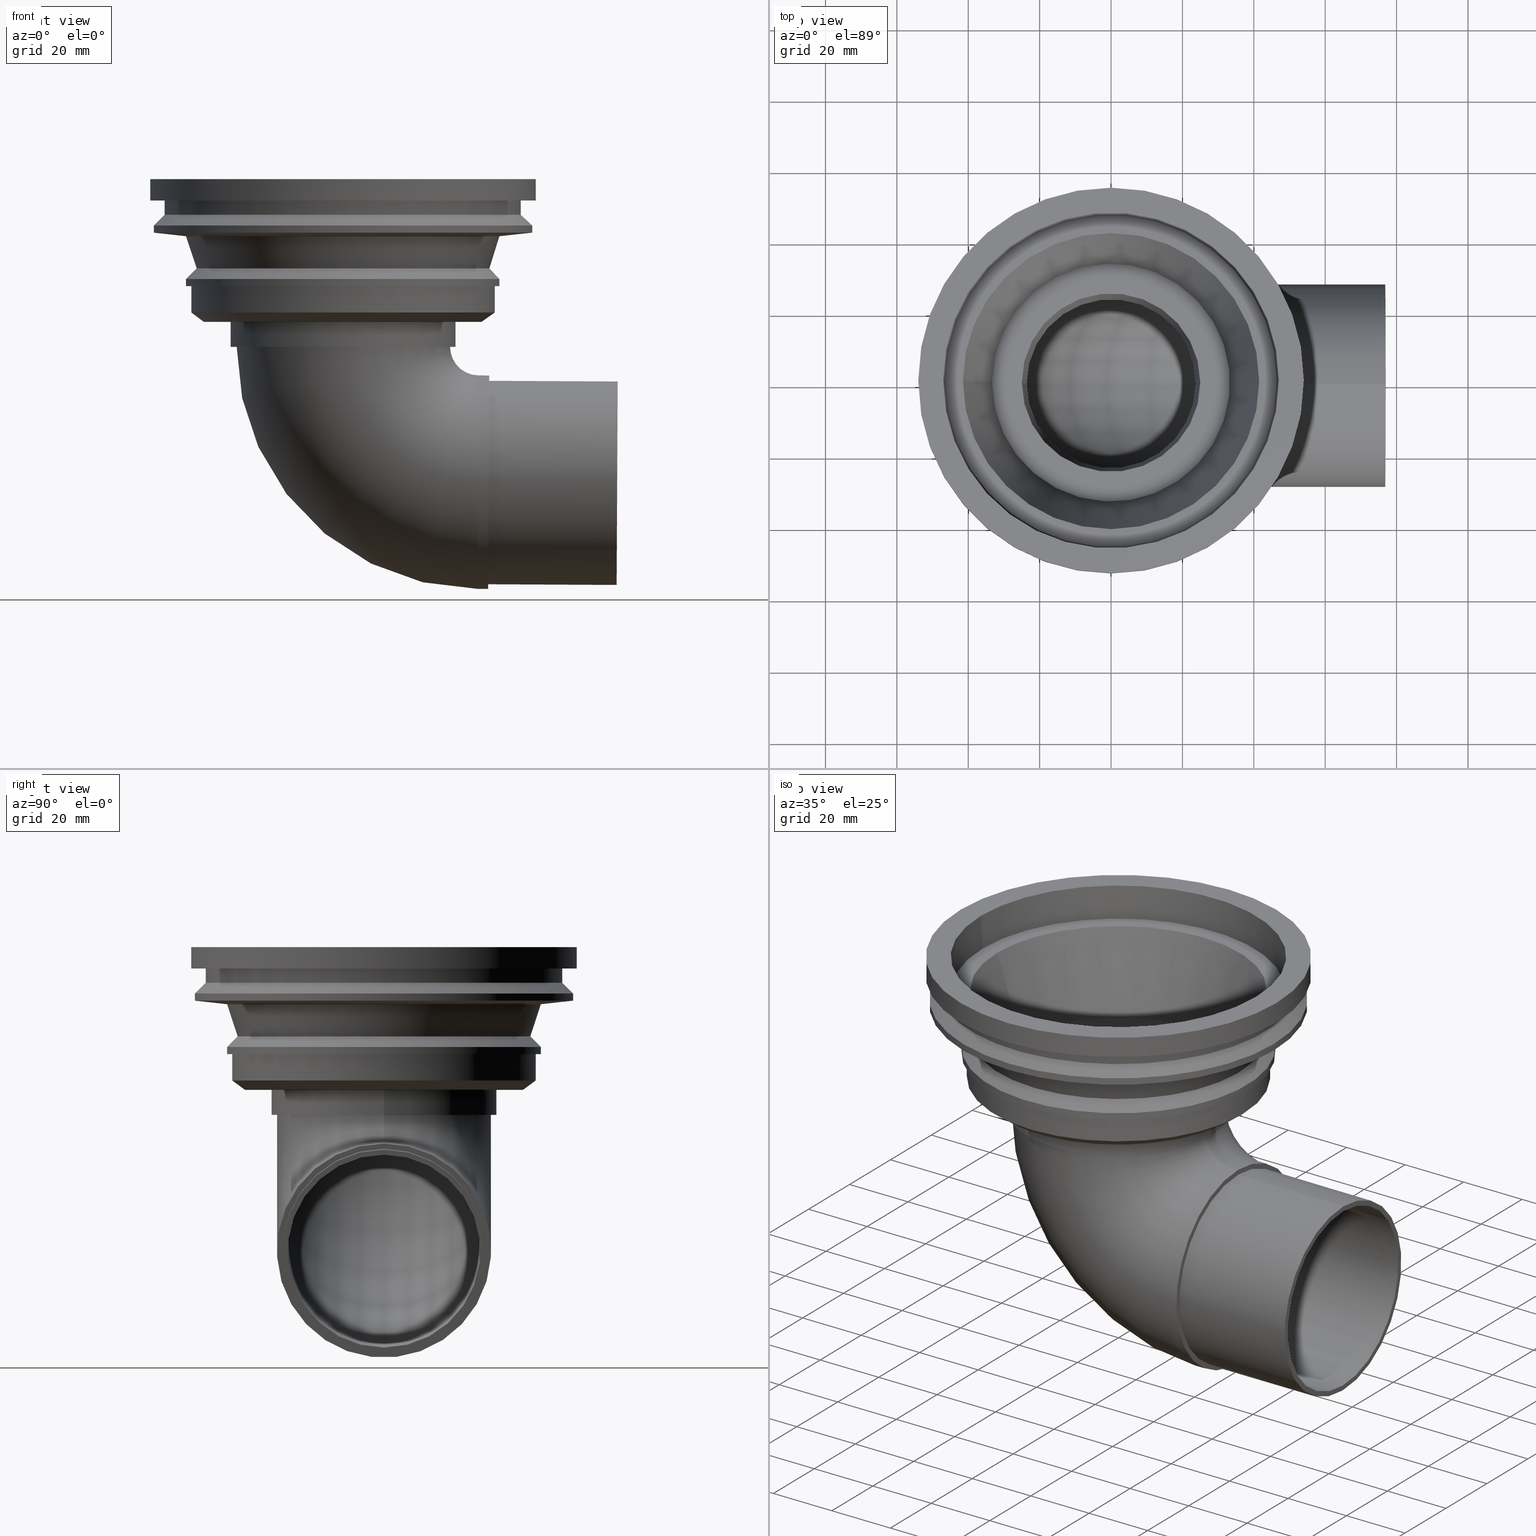
[diagram: canonical four-view strip — front | top / right | iso, engineering-drawing reading convention]
A machine part, canonical four-view strip (front | top / right | iso — engineering-drawing reading convention). The complete STEP part file that produces these views, byte-faithful:
ISO-10303-21;
HEADER;
/* Generated by software containing ST-Developer
 * from STEP Tools, Inc. (www.steptools.com) 
 */
/* OPTION: using custom renumber hook */

FILE_DESCRIPTION(
/* description */ ('STEP AP214'),
/* implementation_level */ '2;1');

FILE_NAME(
/* name */ '482068001(1)',
/* time_stamp */ '2022-12-23T08:19:36+01:00',
/* author */ ('License CC BY-ND 4.0'),
/* organization */ ('CADENAS'),
/* preprocessor_version */ 'ST-DEVELOPER v18.102',
/* originating_system */ 'PARTsolutions',
/* authorisation */ '  ');

FILE_SCHEMA (('AUTOMOTIVE_DESIGN {1 0 10303 214 3 1 1}'));
ENDSEC;

DATA;
#10=PROPERTY_DEFINITION_REPRESENTATION(#14,#12);
#11=PROPERTY_DEFINITION_REPRESENTATION(#15,#13);
#12=REPRESENTATION('',(#16),#737);
#13=REPRESENTATION('',(#17),#737);
#14=PROPERTY_DEFINITION('pmi validation property','',#742);
#15=PROPERTY_DEFINITION('pmi validation property','',#742);
#16=VALUE_REPRESENTATION_ITEM('number of annotations',COUNT_MEASURE(0.));
#17=VALUE_REPRESENTATION_ITEM('number of views',COUNT_MEASURE(0.));
#18=SHAPE_REPRESENTATION_RELATIONSHIP('','',#416,#19);
#19=ADVANCED_BREP_SHAPE_REPRESENTATION('',(#414),#737);
#20=TOROIDAL_SURFACE('',#473,38.,28.5);
#21=TOROIDAL_SURFACE('',#475,38.,30.);
#22=CONICAL_SURFACE('',#428,47.,0.0499583957219428);
#23=CONICAL_SURFACE('',#432,41.5,0.321750554396643);
#24=CONICAL_SURFACE('',#436,25.,0.0659867835152371);
#25=CONICAL_SURFACE('',#440,26.642,0.0659707949251099);
#26=CONICAL_SURFACE('',#444,39.,0.927295218001611);
#27=CONICAL_SURFACE('',#452,44.,0.785398163397446);
#28=CONICAL_SURFACE('',#454,41.,0.321750554396643);
#29=CONICAL_SURFACE('',#456,44.,1.460139105621);
#30=CONICAL_SURFACE('',#460,53.,0.785398163397447);
#31=CYLINDRICAL_SURFACE('',#424,54.);
#32=CYLINDRICAL_SURFACE('',#446,42.5);
#33=CYLINDRICAL_SURFACE('',#450,44.);
#34=CYLINDRICAL_SURFACE('',#458,53.);
#35=CYLINDRICAL_SURFACE('',#462,50.);
#36=CYLINDRICAL_SURFACE('',#463,28.5);
#37=CYLINDRICAL_SURFACE('',#468,30.);
#38=CYLINDRICAL_SURFACE('',#469,31.5);
#39=CYLINDRICAL_SURFACE('',#479,27.);
#40=CYLINDRICAL_SURFACE('',#481,30.);
#41=CYLINDRICAL_SURFACE('',#485,28.5);
#42=ORIENTED_EDGE('',*,*,#112,.F.);
#43=ORIENTED_EDGE('',*,*,#113,.F.);
#44=ORIENTED_EDGE('',*,*,#114,.T.);
#45=ORIENTED_EDGE('',*,*,#115,.F.);
#46=ORIENTED_EDGE('',*,*,#116,.T.);
#47=ORIENTED_EDGE('',*,*,#114,.F.);
#48=ORIENTED_EDGE('',*,*,#117,.T.);
#49=ORIENTED_EDGE('',*,*,#116,.F.);
#50=ORIENTED_EDGE('',*,*,#118,.T.);
#51=ORIENTED_EDGE('',*,*,#117,.F.);
#52=ORIENTED_EDGE('',*,*,#119,.T.);
#53=ORIENTED_EDGE('',*,*,#118,.F.);
#54=ORIENTED_EDGE('',*,*,#120,.T.);
#55=ORIENTED_EDGE('',*,*,#119,.F.);
#56=ORIENTED_EDGE('',*,*,#121,.T.);
#57=ORIENTED_EDGE('',*,*,#120,.F.);
#58=ORIENTED_EDGE('',*,*,#122,.T.);
#59=ORIENTED_EDGE('',*,*,#121,.F.);
#60=ORIENTED_EDGE('',*,*,#123,.T.);
#61=ORIENTED_EDGE('',*,*,#122,.F.);
#62=ORIENTED_EDGE('',*,*,#113,.T.);
#63=ORIENTED_EDGE('',*,*,#123,.F.);
#64=ORIENTED_EDGE('',*,*,#124,.T.);
#65=ORIENTED_EDGE('',*,*,#125,.F.);
#66=ORIENTED_EDGE('',*,*,#126,.T.);
#67=ORIENTED_EDGE('',*,*,#124,.F.);
#68=ORIENTED_EDGE('',*,*,#127,.T.);
#69=ORIENTED_EDGE('',*,*,#126,.F.);
#70=ORIENTED_EDGE('',*,*,#128,.T.);
#71=ORIENTED_EDGE('',*,*,#127,.F.);
#72=ORIENTED_EDGE('',*,*,#129,.T.);
#73=ORIENTED_EDGE('',*,*,#128,.F.);
#74=ORIENTED_EDGE('',*,*,#130,.T.);
#75=ORIENTED_EDGE('',*,*,#129,.F.);
#76=ORIENTED_EDGE('',*,*,#131,.T.);
#77=ORIENTED_EDGE('',*,*,#130,.F.);
#78=ORIENTED_EDGE('',*,*,#132,.T.);
#79=ORIENTED_EDGE('',*,*,#131,.F.);
#80=ORIENTED_EDGE('',*,*,#133,.T.);
#81=ORIENTED_EDGE('',*,*,#132,.F.);
#82=ORIENTED_EDGE('',*,*,#134,.T.);
#83=ORIENTED_EDGE('',*,*,#133,.F.);
#84=ORIENTED_EDGE('',*,*,#115,.T.);
#85=ORIENTED_EDGE('',*,*,#134,.F.);
#86=ORIENTED_EDGE('',*,*,#135,.T.);
#87=ORIENTED_EDGE('',*,*,#136,.F.);
#88=ORIENTED_EDGE('',*,*,#137,.T.);
#89=ORIENTED_EDGE('',*,*,#135,.F.);
#90=ORIENTED_EDGE('',*,*,#112,.T.);
#91=ORIENTED_EDGE('',*,*,#137,.F.);
#92=ORIENTED_EDGE('',*,*,#138,.T.);
#93=ORIENTED_EDGE('',*,*,#125,.T.);
#94=ORIENTED_EDGE('',*,*,#139,.T.);
#95=ORIENTED_EDGE('',*,*,#138,.F.);
#96=ORIENTED_EDGE('',*,*,#140,.F.);
#97=ORIENTED_EDGE('',*,*,#136,.T.);
#98=ORIENTED_EDGE('',*,*,#141,.T.);
#99=ORIENTED_EDGE('',*,*,#139,.F.);
#100=ORIENTED_EDGE('',*,*,#140,.T.);
#101=ORIENTED_EDGE('',*,*,#142,.F.);
#102=ORIENTED_EDGE('',*,*,#142,.T.);
#103=ORIENTED_EDGE('',*,*,#143,.F.);
#104=ORIENTED_EDGE('',*,*,#144,.T.);
#105=ORIENTED_EDGE('',*,*,#141,.F.);
#106=ORIENTED_EDGE('',*,*,#145,.T.);
#107=ORIENTED_EDGE('',*,*,#144,.F.);
#108=ORIENTED_EDGE('',*,*,#146,.T.);
#109=ORIENTED_EDGE('',*,*,#145,.F.);
#110=ORIENTED_EDGE('',*,*,#143,.T.);
#111=ORIENTED_EDGE('',*,*,#146,.F.);
#112=EDGE_CURVE('',#147,#147,#182,.F.);
#113=EDGE_CURVE('',#148,#148,#183,.T.);
#114=EDGE_CURVE('',#149,#149,#184,.T.);
#115=EDGE_CURVE('',#150,#150,#185,.T.);
#116=EDGE_CURVE('',#151,#151,#186,.T.);
#117=EDGE_CURVE('',#152,#152,#187,.T.);
#118=EDGE_CURVE('',#153,#153,#188,.T.);
#119=EDGE_CURVE('',#154,#154,#189,.T.);
#120=EDGE_CURVE('',#155,#155,#190,.T.);
#121=EDGE_CURVE('',#156,#156,#191,.T.);
#122=EDGE_CURVE('',#157,#157,#192,.T.);
#123=EDGE_CURVE('',#158,#158,#193,.T.);
#124=EDGE_CURVE('',#159,#159,#194,.T.);
#125=EDGE_CURVE('',#160,#160,#195,.T.);
#126=EDGE_CURVE('',#161,#161,#196,.T.);
#127=EDGE_CURVE('',#162,#162,#197,.T.);
#128=EDGE_CURVE('',#163,#163,#198,.T.);
#129=EDGE_CURVE('',#164,#164,#199,.T.);
#130=EDGE_CURVE('',#165,#165,#200,.T.);
#131=EDGE_CURVE('',#166,#166,#201,.T.);
#132=EDGE_CURVE('',#167,#167,#202,.T.);
#133=EDGE_CURVE('',#168,#168,#203,.T.);
#134=EDGE_CURVE('',#169,#169,#204,.T.);
#135=EDGE_CURVE('',#170,#170,#205,.T.);
#136=EDGE_CURVE('',#171,#171,#206,.T.);
#137=EDGE_CURVE('',#172,#172,#207,.T.);
#138=EDGE_CURVE('',#173,#173,#208,.T.);
#139=EDGE_CURVE('',#174,#174,#209,.T.);
#140=EDGE_CURVE('',#175,#175,#210,.T.);
#141=EDGE_CURVE('',#176,#176,#211,.T.);
#142=EDGE_CURVE('',#177,#177,#212,.T.);
#143=EDGE_CURVE('',#178,#178,#213,.T.);
#144=EDGE_CURVE('',#179,#179,#214,.T.);
#145=EDGE_CURVE('',#180,#180,#215,.T.);
#146=EDGE_CURVE('',#181,#181,#216,.T.);
#147=VERTEX_POINT('',#633);
#148=VERTEX_POINT('',#635);
#149=VERTEX_POINT('',#638);
#150=VERTEX_POINT('',#640);
#151=VERTEX_POINT('',#643);
#152=VERTEX_POINT('',#646);
#153=VERTEX_POINT('',#649);
#154=VERTEX_POINT('',#652);
#155=VERTEX_POINT('',#655);
#156=VERTEX_POINT('',#658);
#157=VERTEX_POINT('',#661);
#158=VERTEX_POINT('',#664);
#159=VERTEX_POINT('',#668);
#160=VERTEX_POINT('',#670);
#161=VERTEX_POINT('',#673);
#162=VERTEX_POINT('',#676);
#163=VERTEX_POINT('',#679);
#164=VERTEX_POINT('',#682);
#165=VERTEX_POINT('',#685);
#166=VERTEX_POINT('',#688);
#167=VERTEX_POINT('',#691);
#168=VERTEX_POINT('',#694);
#169=VERTEX_POINT('',#697);
#170=VERTEX_POINT('',#701);
#171=VERTEX_POINT('',#703);
#172=VERTEX_POINT('',#706);
#173=VERTEX_POINT('',#710);
#174=VERTEX_POINT('',#713);
#175=VERTEX_POINT('',#716);
#176=VERTEX_POINT('',#719);
#177=VERTEX_POINT('',#722);
#178=VERTEX_POINT('',#725);
#179=VERTEX_POINT('',#728);
#180=VERTEX_POINT('',#731);
#181=VERTEX_POINT('',#734);
#182=CIRCLE('',#419,30.);
#183=CIRCLE('',#420,27.633);
#184=CIRCLE('',#422,54.);
#185=CIRCLE('',#423,50.);
#186=CIRCLE('',#425,54.);
#187=CIRCLE('',#427,47.);
#188=CIRCLE('',#429,46.5);
#189=CIRCLE('',#431,41.5);
#190=CIRCLE('',#433,33.35);
#191=CIRCLE('',#435,25.);
#192=CIRCLE('',#437,23.642);
#193=CIRCLE('',#439,26.642);
#194=CIRCLE('',#442,39.);
#195=CIRCLE('',#443,31.5);
#196=CIRCLE('',#445,42.5);
#197=CIRCLE('',#447,42.5);
#198=CIRCLE('',#449,44.);
#199=CIRCLE('',#451,44.);
#200=CIRCLE('',#453,41.);
#201=CIRCLE('',#455,44.);
#202=CIRCLE('',#457,53.);
#203=CIRCLE('',#459,53.);
#204=CIRCLE('',#461,50.);
#205=CIRCLE('',#464,28.5);
#206=CIRCLE('',#465,28.5);
#207=CIRCLE('',#467,30.);
#208=CIRCLE('',#470,31.5);
#209=CIRCLE('',#472,30.);
#210=CIRCLE('',#474,28.5);
#211=CIRCLE('',#476,30.);
#212=CIRCLE('',#478,27.);
#213=CIRCLE('',#480,27.);
#214=CIRCLE('',#482,30.);
#215=CIRCLE('',#484,28.5);
#216=CIRCLE('',#486,28.5);
#217=EDGE_LOOP('',(#42));
#218=EDGE_LOOP('',(#43));
#219=EDGE_LOOP('',(#44));
#220=EDGE_LOOP('',(#45));
#221=EDGE_LOOP('',(#46));
#222=EDGE_LOOP('',(#47));
#223=EDGE_LOOP('',(#48));
#224=EDGE_LOOP('',(#49));
#225=EDGE_LOOP('',(#50));
#226=EDGE_LOOP('',(#51));
#227=EDGE_LOOP('',(#52));
#228=EDGE_LOOP('',(#53));
#229=EDGE_LOOP('',(#54));
#230=EDGE_LOOP('',(#55));
#231=EDGE_LOOP('',(#56));
#232=EDGE_LOOP('',(#57));
#233=EDGE_LOOP('',(#58));
#234=EDGE_LOOP('',(#59));
#235=EDGE_LOOP('',(#60));
#236=EDGE_LOOP('',(#61));
#237=EDGE_LOOP('',(#62));
#238=EDGE_LOOP('',(#63));
#239=EDGE_LOOP('',(#64));
#240=EDGE_LOOP('',(#65));
#241=EDGE_LOOP('',(#66));
#242=EDGE_LOOP('',(#67));
#243=EDGE_LOOP('',(#68));
#244=EDGE_LOOP('',(#69));
#245=EDGE_LOOP('',(#70));
#246=EDGE_LOOP('',(#71));
#247=EDGE_LOOP('',(#72));
#248=EDGE_LOOP('',(#73));
#249=EDGE_LOOP('',(#74));
#250=EDGE_LOOP('',(#75));
#251=EDGE_LOOP('',(#76));
#252=EDGE_LOOP('',(#77));
#253=EDGE_LOOP('',(#78));
#254=EDGE_LOOP('',(#79));
#255=EDGE_LOOP('',(#80));
#256=EDGE_LOOP('',(#81));
#257=EDGE_LOOP('',(#82));
#258=EDGE_LOOP('',(#83));
#259=EDGE_LOOP('',(#84));
#260=EDGE_LOOP('',(#85));
#261=EDGE_LOOP('',(#86));
#262=EDGE_LOOP('',(#87));
#263=EDGE_LOOP('',(#88));
#264=EDGE_LOOP('',(#89));
#265=EDGE_LOOP('',(#90));
#266=EDGE_LOOP('',(#91));
#267=EDGE_LOOP('',(#92));
#268=EDGE_LOOP('',(#93));
#269=EDGE_LOOP('',(#94));
#270=EDGE_LOOP('',(#95));
#271=EDGE_LOOP('',(#96));
#272=EDGE_LOOP('',(#97));
#273=EDGE_LOOP('',(#98));
#274=EDGE_LOOP('',(#99));
#275=EDGE_LOOP('',(#100));
#276=EDGE_LOOP('',(#101));
#277=EDGE_LOOP('',(#102));
#278=EDGE_LOOP('',(#103));
#279=EDGE_LOOP('',(#104));
#280=EDGE_LOOP('',(#105));
#281=EDGE_LOOP('',(#106));
#282=EDGE_LOOP('',(#107));
#283=EDGE_LOOP('',(#108));
#284=EDGE_LOOP('',(#109));
#285=EDGE_LOOP('',(#110));
#286=EDGE_LOOP('',(#111));
#287=FACE_BOUND('',#217,.T.);
#288=FACE_BOUND('',#218,.T.);
#289=FACE_BOUND('',#219,.T.);
#290=FACE_BOUND('',#220,.T.);
#291=FACE_BOUND('',#221,.T.);
#292=FACE_BOUND('',#222,.T.);
#293=FACE_BOUND('',#223,.T.);
#294=FACE_BOUND('',#224,.T.);
#295=FACE_BOUND('',#225,.T.);
#296=FACE_BOUND('',#226,.T.);
#297=FACE_BOUND('',#227,.T.);
#298=FACE_BOUND('',#228,.T.);
#299=FACE_BOUND('',#229,.T.);
#300=FACE_BOUND('',#230,.T.);
#301=FACE_BOUND('',#231,.T.);
#302=FACE_BOUND('',#232,.T.);
#303=FACE_BOUND('',#233,.T.);
#304=FACE_BOUND('',#234,.T.);
#305=FACE_BOUND('',#235,.T.);
#306=FACE_BOUND('',#236,.T.);
#307=FACE_BOUND('',#237,.T.);
#308=FACE_BOUND('',#238,.T.);
#309=FACE_BOUND('',#239,.T.);
#310=FACE_BOUND('',#240,.T.);
#311=FACE_BOUND('',#241,.T.);
#312=FACE_BOUND('',#242,.T.);
#313=FACE_BOUND('',#243,.T.);
#314=FACE_BOUND('',#244,.T.);
#315=FACE_BOUND('',#245,.T.);
#316=FACE_BOUND('',#246,.T.);
#317=FACE_BOUND('',#247,.T.);
#318=FACE_BOUND('',#248,.T.);
#319=FACE_BOUND('',#249,.T.);
#320=FACE_BOUND('',#250,.T.);
#321=FACE_BOUND('',#251,.T.);
#322=FACE_BOUND('',#252,.T.);
#323=FACE_BOUND('',#253,.T.);
#324=FACE_BOUND('',#254,.T.);
#325=FACE_BOUND('',#255,.T.);
#326=FACE_BOUND('',#256,.T.);
#327=FACE_BOUND('',#257,.T.);
#328=FACE_BOUND('',#258,.T.);
#329=FACE_BOUND('',#259,.T.);
#330=FACE_BOUND('',#260,.T.);
#331=FACE_BOUND('',#261,.T.);
#332=FACE_BOUND('',#262,.T.);
#333=FACE_BOUND('',#263,.T.);
#334=FACE_BOUND('',#264,.T.);
#335=FACE_BOUND('',#265,.T.);
#336=FACE_BOUND('',#266,.T.);
#337=FACE_BOUND('',#267,.T.);
#338=FACE_BOUND('',#268,.T.);
#339=FACE_BOUND('',#269,.T.);
#340=FACE_BOUND('',#270,.T.);
#341=FACE_BOUND('',#271,.T.);
#342=FACE_BOUND('',#272,.T.);
#343=FACE_BOUND('',#273,.T.);
#344=FACE_BOUND('',#274,.T.);
#345=FACE_BOUND('',#275,.T.);
#346=FACE_BOUND('',#276,.T.);
#347=FACE_BOUND('',#277,.T.);
#348=FACE_BOUND('',#278,.T.);
#349=FACE_BOUND('',#279,.T.);
#350=FACE_BOUND('',#280,.T.);
#351=FACE_BOUND('',#281,.T.);
#352=FACE_BOUND('',#282,.T.);
#353=FACE_BOUND('',#283,.T.);
#354=FACE_BOUND('',#284,.T.);
#355=FACE_BOUND('',#285,.T.);
#356=FACE_BOUND('',#286,.T.);
#357=PLANE('',#418);
#358=PLANE('',#421);
#359=PLANE('',#426);
#360=PLANE('',#430);
#361=PLANE('',#434);
#362=PLANE('',#438);
#363=PLANE('',#441);
#364=PLANE('',#448);
#365=PLANE('',#466);
#366=PLANE('',#471);
#367=PLANE('',#477);
#368=PLANE('',#483);
#369=PLANE('',#487);
#370=ADVANCED_FACE('',(#287,#288),#357,.T.);
#371=ADVANCED_FACE('',(#289,#290),#358,.T.);
#372=ADVANCED_FACE('',(#291,#292),#31,.T.);
#373=ADVANCED_FACE('',(#293,#294),#359,.T.);
#374=ADVANCED_FACE('',(#295,#296),#22,.F.);
#375=ADVANCED_FACE('',(#297,#298),#360,.T.);
#376=ADVANCED_FACE('',(#299,#300),#23,.F.);
#377=ADVANCED_FACE('',(#301,#302),#361,.T.);
#378=ADVANCED_FACE('',(#303,#304),#24,.F.);
#379=ADVANCED_FACE('',(#305,#306),#362,.T.);
#380=ADVANCED_FACE('',(#307,#308),#25,.T.);
#381=ADVANCED_FACE('',(#309,#310),#363,.T.);
#382=ADVANCED_FACE('',(#311,#312),#26,.T.);
#383=ADVANCED_FACE('',(#313,#314),#32,.T.);
#384=ADVANCED_FACE('',(#315,#316),#364,.T.);
#385=ADVANCED_FACE('',(#317,#318),#33,.T.);
#386=ADVANCED_FACE('',(#319,#320),#27,.T.);
#387=ADVANCED_FACE('',(#321,#322),#28,.T.);
#388=ADVANCED_FACE('',(#323,#324),#29,.T.);
#389=ADVANCED_FACE('',(#325,#326),#34,.T.);
#390=ADVANCED_FACE('',(#327,#328),#30,.T.);
#391=ADVANCED_FACE('',(#329,#330),#35,.T.);
#392=ADVANCED_FACE('',(#331,#332),#36,.F.);
#393=ADVANCED_FACE('',(#333,#334),#365,.T.);
#394=ADVANCED_FACE('',(#335,#336),#37,.F.);
#395=ADVANCED_FACE('',(#337,#338),#38,.T.);
#396=ADVANCED_FACE('',(#339,#340),#366,.T.);
#397=ADVANCED_FACE('',(#341,#342),#20,.F.);
#398=ADVANCED_FACE('',(#343,#344),#21,.T.);
#399=ADVANCED_FACE('',(#345,#346),#367,.T.);
#400=ADVANCED_FACE('',(#347,#348),#39,.F.);
#401=ADVANCED_FACE('',(#349,#350),#40,.T.);
#402=ADVANCED_FACE('',(#351,#352),#368,.T.);
#403=ADVANCED_FACE('',(#353,#354),#41,.T.);
#404=ADVANCED_FACE('',(#355,#356),#369,.T.);
#405=CLOSED_SHELL('',(#370,#371,#372,#373,#374,#375,#376,#377,#378,#379,
#380,#381,#382,#383,#384,#385,#386,#387,#388,#389,#390,#391,#392,#393,#394,
#395,#396,#397,#398,#399,#400,#401,#402,#403,#404));
#406=STYLED_ITEM('',(#407),#414);
#407=PRESENTATION_STYLE_ASSIGNMENT((#408));
#408=SURFACE_STYLE_USAGE(.BOTH.,#409);
#409=SURFACE_SIDE_STYLE('',(#410));
#410=SURFACE_STYLE_FILL_AREA(#411);
#411=FILL_AREA_STYLE('',(#412));
#412=FILL_AREA_STYLE_COLOUR('',#413);
#413=COLOUR_RGB('',0.689999997615814,0.689999997615814,0.689999997615814);
#414=MANIFOLD_SOLID_BREP('482068001(1)',#405);
#415=SHAPE_DEFINITION_REPRESENTATION(#742,#416);
#416=SHAPE_REPRESENTATION('482068001(1)',(#417),#737);
#417=AXIS2_PLACEMENT_3D('',#630,#488,#489);
#418=AXIS2_PLACEMENT_3D('',#631,#490,#491);
#419=AXIS2_PLACEMENT_3D('',#632,#492,#493);
#420=AXIS2_PLACEMENT_3D('',#634,#494,#495);
#421=AXIS2_PLACEMENT_3D('',#636,#496,#497);
#422=AXIS2_PLACEMENT_3D('',#637,#498,#499);
#423=AXIS2_PLACEMENT_3D('',#639,#500,#501);
#424=AXIS2_PLACEMENT_3D('',#641,#502,#503);
#425=AXIS2_PLACEMENT_3D('',#642,#504,#505);
#426=AXIS2_PLACEMENT_3D('',#644,#506,#507);
#427=AXIS2_PLACEMENT_3D('',#645,#508,#509);
#428=AXIS2_PLACEMENT_3D('',#647,#510,#511);
#429=AXIS2_PLACEMENT_3D('',#648,#512,#513);
#430=AXIS2_PLACEMENT_3D('',#650,#514,#515);
#431=AXIS2_PLACEMENT_3D('',#651,#516,#517);
#432=AXIS2_PLACEMENT_3D('',#653,#518,#519);
#433=AXIS2_PLACEMENT_3D('',#654,#520,#521);
#434=AXIS2_PLACEMENT_3D('',#656,#522,#523);
#435=AXIS2_PLACEMENT_3D('',#657,#524,#525);
#436=AXIS2_PLACEMENT_3D('',#659,#526,#527);
#437=AXIS2_PLACEMENT_3D('',#660,#528,#529);
#438=AXIS2_PLACEMENT_3D('',#662,#530,#531);
#439=AXIS2_PLACEMENT_3D('',#663,#532,#533);
#440=AXIS2_PLACEMENT_3D('',#665,#534,#535);
#441=AXIS2_PLACEMENT_3D('',#666,#536,#537);
#442=AXIS2_PLACEMENT_3D('',#667,#538,#539);
#443=AXIS2_PLACEMENT_3D('',#669,#540,#541);
#444=AXIS2_PLACEMENT_3D('',#671,#542,#543);
#445=AXIS2_PLACEMENT_3D('',#672,#544,#545);
#446=AXIS2_PLACEMENT_3D('',#674,#546,#547);
#447=AXIS2_PLACEMENT_3D('',#675,#548,#549);
#448=AXIS2_PLACEMENT_3D('',#677,#550,#551);
#449=AXIS2_PLACEMENT_3D('',#678,#552,#553);
#450=AXIS2_PLACEMENT_3D('',#680,#554,#555);
#451=AXIS2_PLACEMENT_3D('',#681,#556,#557);
#452=AXIS2_PLACEMENT_3D('',#683,#558,#559);
#453=AXIS2_PLACEMENT_3D('',#684,#560,#561);
#454=AXIS2_PLACEMENT_3D('',#686,#562,#563);
#455=AXIS2_PLACEMENT_3D('',#687,#564,#565);
#456=AXIS2_PLACEMENT_3D('',#689,#566,#567);
#457=AXIS2_PLACEMENT_3D('',#690,#568,#569);
#458=AXIS2_PLACEMENT_3D('',#692,#570,#571);
#459=AXIS2_PLACEMENT_3D('',#693,#572,#573);
#460=AXIS2_PLACEMENT_3D('',#695,#574,#575);
#461=AXIS2_PLACEMENT_3D('',#696,#576,#577);
#462=AXIS2_PLACEMENT_3D('',#698,#578,#579);
#463=AXIS2_PLACEMENT_3D('',#699,#580,#581);
#464=AXIS2_PLACEMENT_3D('',#700,#582,#583);
#465=AXIS2_PLACEMENT_3D('',#702,#584,#585);
#466=AXIS2_PLACEMENT_3D('',#704,#586,#587);
#467=AXIS2_PLACEMENT_3D('',#705,#588,#589);
#468=AXIS2_PLACEMENT_3D('',#707,#590,#591);
#469=AXIS2_PLACEMENT_3D('',#708,#592,#593);
#470=AXIS2_PLACEMENT_3D('',#709,#594,#595);
#471=AXIS2_PLACEMENT_3D('',#711,#596,#597);
#472=AXIS2_PLACEMENT_3D('',#712,#598,#599);
#473=AXIS2_PLACEMENT_3D('',#714,#600,#601);
#474=AXIS2_PLACEMENT_3D('',#715,#602,#603);
#475=AXIS2_PLACEMENT_3D('',#717,#604,#605);
#476=AXIS2_PLACEMENT_3D('',#718,#606,#607);
#477=AXIS2_PLACEMENT_3D('',#720,#608,#609);
#478=AXIS2_PLACEMENT_3D('',#721,#610,#611);
#479=AXIS2_PLACEMENT_3D('',#723,#612,#613);
#480=AXIS2_PLACEMENT_3D('',#724,#614,#615);
#481=AXIS2_PLACEMENT_3D('',#726,#616,#617);
#482=AXIS2_PLACEMENT_3D('',#727,#618,#619);
#483=AXIS2_PLACEMENT_3D('',#729,#620,#621);
#484=AXIS2_PLACEMENT_3D('',#730,#622,#623);
#485=AXIS2_PLACEMENT_3D('',#732,#624,#625);
#486=AXIS2_PLACEMENT_3D('',#733,#626,#627);
#487=AXIS2_PLACEMENT_3D('',#735,#628,#629);
#488=DIRECTION('',(0.,0.,1.));
#489=DIRECTION('',(1.,0.,0.));
#490=DIRECTION('',(0.,0.,-1.));
#491=DIRECTION('',(-1.,0.,0.));
#492=DIRECTION('',(0.,0.,-1.));
#493=DIRECTION('',(-1.,0.,0.));
#494=DIRECTION('',(0.,0.,-1.));
#495=DIRECTION('',(-1.,0.,0.));
#496=DIRECTION('',(0.,0.,-1.));
#497=DIRECTION('',(-1.,0.,0.));
#498=DIRECTION('',(0.,0.,-1.));
#499=DIRECTION('',(-1.,0.,0.));
#500=DIRECTION('',(0.,0.,-1.));
#501=DIRECTION('',(-1.,0.,0.));
#502=DIRECTION('',(0.,0.,-1.));
#503=DIRECTION('',(-1.,0.,0.));
#504=DIRECTION('',(0.,0.,-1.));
#505=DIRECTION('',(-1.,0.,0.));
#506=DIRECTION('',(0.,0.,1.));
#507=DIRECTION('',(1.,0.,0.));
#508=DIRECTION('',(0.,0.,-1.));
#509=DIRECTION('',(-1.,0.,0.));
#510=DIRECTION('',(0.,0.,1.));
#511=DIRECTION('',(1.,0.,0.));
#512=DIRECTION('',(0.,0.,-1.));
#513=DIRECTION('',(-1.,0.,0.));
#514=DIRECTION('',(0.,0.,1.));
#515=DIRECTION('',(1.,0.,0.));
#516=DIRECTION('',(0.,0.,-1.));
#517=DIRECTION('',(-1.,0.,0.));
#518=DIRECTION('',(0.,0.,1.));
#519=DIRECTION('',(1.,0.,0.));
#520=DIRECTION('',(0.,0.,-1.));
#521=DIRECTION('',(-1.,0.,0.));
#522=DIRECTION('',(0.,0.,1.));
#523=DIRECTION('',(1.,0.,0.));
#524=DIRECTION('',(0.,0.,-1.));
#525=DIRECTION('',(-1.,0.,0.));
#526=DIRECTION('',(0.,0.,1.));
#527=DIRECTION('',(1.,0.,0.));
#528=DIRECTION('',(0.,0.,-1.));
#529=DIRECTION('',(-1.,0.,0.));
#530=DIRECTION('',(0.,0.,-1.));
#531=DIRECTION('',(-1.,0.,0.));
#532=DIRECTION('',(0.,0.,-1.));
#533=DIRECTION('',(-1.,0.,0.));
#534=DIRECTION('',(0.,0.,1.));
#535=DIRECTION('',(1.,0.,0.));
#536=DIRECTION('',(0.,0.,-1.));
#537=DIRECTION('',(-1.,0.,0.));
#538=DIRECTION('',(0.,0.,-1.));
#539=DIRECTION('',(-1.,0.,0.));
#540=DIRECTION('',(0.,0.,-1.));
#541=DIRECTION('',(-1.,0.,0.));
#542=DIRECTION('',(0.,0.,1.));
#543=DIRECTION('',(1.,0.,0.));
#544=DIRECTION('',(0.,0.,-1.));
#545=DIRECTION('',(-1.,0.,0.));
#546=DIRECTION('',(0.,0.,-1.));
#547=DIRECTION('',(-1.,0.,0.));
#548=DIRECTION('',(0.,0.,-1.));
#549=DIRECTION('',(-1.,0.,0.));
#550=DIRECTION('',(0.,0.,-1.));
#551=DIRECTION('',(-1.,0.,0.));
#552=DIRECTION('',(0.,0.,-1.));
#553=DIRECTION('',(-1.,0.,0.));
#554=DIRECTION('',(0.,0.,-1.));
#555=DIRECTION('',(-1.,0.,0.));
#556=DIRECTION('',(0.,0.,-1.));
#557=DIRECTION('',(-1.,0.,0.));
#558=DIRECTION('',(0.,0.,-1.));
#559=DIRECTION('',(-1.,0.,0.));
#560=DIRECTION('',(0.,0.,-1.));
#561=DIRECTION('',(-1.,0.,0.));
#562=DIRECTION('',(0.,0.,1.));
#563=DIRECTION('',(1.,0.,0.));
#564=DIRECTION('',(0.,0.,-1.));
#565=DIRECTION('',(-1.,0.,0.));
#566=DIRECTION('',(0.,0.,1.));
#567=DIRECTION('',(1.,0.,0.));
#568=DIRECTION('',(0.,0.,-1.));
#569=DIRECTION('',(-1.,0.,0.));
#570=DIRECTION('',(0.,0.,-1.));
#571=DIRECTION('',(-1.,0.,0.));
#572=DIRECTION('',(0.,0.,-1.));
#573=DIRECTION('',(-1.,0.,0.));
#574=DIRECTION('',(0.,0.,-1.));
#575=DIRECTION('',(-1.,0.,0.));
#576=DIRECTION('',(0.,0.,-1.));
#577=DIRECTION('',(-1.,0.,0.));
#578=DIRECTION('',(0.,0.,-1.));
#579=DIRECTION('',(-1.,0.,0.));
#580=DIRECTION('',(0.,0.,1.));
#581=DIRECTION('',(1.,0.,0.));
#582=DIRECTION('',(0.,0.,1.));
#583=DIRECTION('',(1.,0.,0.));
#584=DIRECTION('',(0.,0.,1.));
#585=DIRECTION('',(1.,0.,0.));
#586=DIRECTION('',(0.,0.,1.));
#587=DIRECTION('',(1.,0.,0.));
#588=DIRECTION('',(0.,0.,1.));
#589=DIRECTION('',(1.,0.,0.));
#590=DIRECTION('',(0.,0.,1.));
#591=DIRECTION('',(1.,0.,0.));
#592=DIRECTION('',(0.,0.,1.));
#593=DIRECTION('',(1.,0.,0.));
#594=DIRECTION('',(0.,0.,1.));
#595=DIRECTION('',(1.,0.,0.));
#596=DIRECTION('',(0.,0.,-1.));
#597=DIRECTION('',(-1.,0.,0.));
#598=DIRECTION('',(0.,0.,1.));
#599=DIRECTION('',(1.,0.,0.));
#600=DIRECTION('',(0.,1.,0.));
#601=DIRECTION('',(0.,0.,1.));
#602=DIRECTION('',(-0.999986292247427,0.,0.00523596383141954));
#603=DIRECTION('',(0.00523596383141954,0.,0.999986292247427));
#604=DIRECTION('',(0.,1.,0.));
#605=DIRECTION('',(0.,0.,1.));
#606=DIRECTION('',(-0.999986292247427,0.,0.00523596383141954));
#607=DIRECTION('',(0.00523596383141954,0.,0.999986292247427));
#608=DIRECTION('',(-0.999986292247427,0.,0.00523596383141975));
#609=DIRECTION('',(0.00523596383141975,0.,0.999986292247427));
#610=DIRECTION('',(-0.999986292247427,0.,0.00523596383141975));
#611=DIRECTION('',(0.00523596383141975,0.,0.999986292247427));
#612=DIRECTION('',(-0.999986292247427,0.,0.00523596383141975));
#613=DIRECTION('',(0.00523596383141975,0.,0.999986292247427));
#614=DIRECTION('',(-0.999986292247427,0.,0.00523596383141975));
#615=DIRECTION('',(0.00523596383141975,0.,0.999986292247427));
#616=DIRECTION('',(-0.999986292247427,0.,0.00523596383141975));
#617=DIRECTION('',(0.00523596383141975,0.,0.999986292247427));
#618=DIRECTION('',(-0.999986292247427,0.,0.00523596383141975));
#619=DIRECTION('',(0.00523596383141975,0.,0.999986292247427));
#620=DIRECTION('',(0.999986292247427,0.,-0.00523596383141975));
#621=DIRECTION('',(-0.00523596383141975,0.,-0.999986292247427));
#622=DIRECTION('',(-0.999986292247427,0.,0.00523596383141975));
#623=DIRECTION('',(0.00523596383141975,0.,0.999986292247427));
#624=DIRECTION('',(-0.999986292247427,0.,0.00523596383141975));
#625=DIRECTION('',(0.00523596383141975,0.,0.999986292247427));
#626=DIRECTION('',(-0.999986292247427,0.,0.00523596383141975));
#627=DIRECTION('',(0.00523596383141975,0.,0.999986292247427));
#628=DIRECTION('',(0.999986292247427,0.,-0.00523596383141975));
#629=DIRECTION('',(-0.00523596383141975,0.,-0.999986292247427));
#630=CARTESIAN_POINT('',(0.,0.,0.));
#631=CARTESIAN_POINT('',(-27.633,0.,-40.));
#632=CARTESIAN_POINT('',(0.,0.,-40.));
#633=CARTESIAN_POINT('',(-30.,0.,-40.));
#634=CARTESIAN_POINT('',(0.,0.,-40.));
#635=CARTESIAN_POINT('',(-27.633,0.,-40.));
#636=CARTESIAN_POINT('',(-50.,0.,-6.00000000000001));
#637=CARTESIAN_POINT('',(0.,0.,-6.00000000000001));
#638=CARTESIAN_POINT('',(-54.,0.,-6.00000000000001));
#639=CARTESIAN_POINT('',(0.,0.,-6.00000000000001));
#640=CARTESIAN_POINT('',(-50.,0.,-6.00000000000001));
#641=CARTESIAN_POINT('',(0.,0.,-5.));
#642=CARTESIAN_POINT('',(0.,0.,-6.93889390390723E-15));
#643=CARTESIAN_POINT('',(-54.,0.,-6.93889390390723E-15));
#644=CARTESIAN_POINT('',(-54.,0.,-7.02216063075412E-15));
#645=CARTESIAN_POINT('',(0.,0.,-6.93889390390723E-15));
#646=CARTESIAN_POINT('',(-47.,0.,-6.93889390390723E-15));
#647=CARTESIAN_POINT('',(0.,0.,-6.93889390390723E-15));
#648=CARTESIAN_POINT('',(0.,0.,-10.));
#649=CARTESIAN_POINT('',(-46.5,0.,-10.));
#650=CARTESIAN_POINT('',(-46.5,0.,-10.));
#651=CARTESIAN_POINT('',(0.,0.,-10.));
#652=CARTESIAN_POINT('',(-41.5,0.,-10.));
#653=CARTESIAN_POINT('',(0.,0.,-10.));
#654=CARTESIAN_POINT('',(0.,0.,-34.45));
#655=CARTESIAN_POINT('',(-33.35,0.,-34.45));
#656=CARTESIAN_POINT('',(-33.35,0.,-34.45));
#657=CARTESIAN_POINT('',(0.,0.,-34.45));
#658=CARTESIAN_POINT('',(-25.,0.,-34.45));
#659=CARTESIAN_POINT('',(0.,0.,-34.45));
#660=CARTESIAN_POINT('',(0.,0.,-55.));
#661=CARTESIAN_POINT('',(-23.642,0.,-55.));
#662=CARTESIAN_POINT('',(-23.642,0.,-55.));
#663=CARTESIAN_POINT('',(0.,0.,-55.));
#664=CARTESIAN_POINT('',(-26.642,0.,-55.));
#665=CARTESIAN_POINT('',(0.,0.,-55.));
#666=CARTESIAN_POINT('',(-27.633,0.,-40.));
#667=CARTESIAN_POINT('',(0.,0.,-40.));
#668=CARTESIAN_POINT('',(-39.,0.,-40.));
#669=CARTESIAN_POINT('',(0.,0.,-40.));
#670=CARTESIAN_POINT('',(-31.5,0.,-40.));
#671=CARTESIAN_POINT('',(0.,0.,-40.));
#672=CARTESIAN_POINT('',(0.,0.,-37.375));
#673=CARTESIAN_POINT('',(-42.5,0.,-37.375));
#674=CARTESIAN_POINT('',(0.,0.,-5.));
#675=CARTESIAN_POINT('',(0.,0.,-30.));
#676=CARTESIAN_POINT('',(-42.5,0.,-30.));
#677=CARTESIAN_POINT('',(-42.5,0.,-30.));
#678=CARTESIAN_POINT('',(0.,0.,-30.));
#679=CARTESIAN_POINT('',(-44.,0.,-30.));
#680=CARTESIAN_POINT('',(0.,0.,-5.));
#681=CARTESIAN_POINT('',(0.,0.,-28.));
#682=CARTESIAN_POINT('',(-44.,0.,-28.));
#683=CARTESIAN_POINT('',(0.,0.,-28.));
#684=CARTESIAN_POINT('',(0.,0.,-25.));
#685=CARTESIAN_POINT('',(-41.,0.,-25.));
#686=CARTESIAN_POINT('',(0.,0.,-25.));
#687=CARTESIAN_POINT('',(0.,0.,-16.));
#688=CARTESIAN_POINT('',(-44.,0.,-16.));
#689=CARTESIAN_POINT('',(0.,0.,-16.));
#690=CARTESIAN_POINT('',(0.,0.,-15.));
#691=CARTESIAN_POINT('',(-53.,0.,-15.));
#692=CARTESIAN_POINT('',(0.,0.,-5.));
#693=CARTESIAN_POINT('',(0.,0.,-13.));
#694=CARTESIAN_POINT('',(-53.,0.,-13.));
#695=CARTESIAN_POINT('',(0.,0.,-13.));
#696=CARTESIAN_POINT('',(0.,0.,-10.));
#697=CARTESIAN_POINT('',(-50.,0.,-10.));
#698=CARTESIAN_POINT('',(0.,0.,-5.));
#699=CARTESIAN_POINT('',(0.,0.,-40.));
#700=CARTESIAN_POINT('',(0.,0.,-44.));
#701=CARTESIAN_POINT('',(28.5,0.,-44.));
#702=CARTESIAN_POINT('',(0.,0.,-47.));
#703=CARTESIAN_POINT('',(28.5,0.,-47.));
#704=CARTESIAN_POINT('',(28.5,0.,-44.));
#705=CARTESIAN_POINT('',(0.,0.,-44.));
#706=CARTESIAN_POINT('',(30.,0.,-44.));
#707=CARTESIAN_POINT('',(0.,0.,-40.));
#708=CARTESIAN_POINT('',(0.,0.,-40.));
#709=CARTESIAN_POINT('',(0.,0.,-47.));
#710=CARTESIAN_POINT('',(31.5,0.,-47.));
#711=CARTESIAN_POINT('',(31.5,0.,-47.));
#712=CARTESIAN_POINT('',(0.,0.,-47.));
#713=CARTESIAN_POINT('',(30.,0.,-47.));
#714=CARTESIAN_POINT('',(38.,0.,-47.));
#715=CARTESIAN_POINT('',(37.8010333744061,0.,-84.9994791054022));
#716=CARTESIAN_POINT('',(37.9502583436015,0.,-56.4998697763506));
#717=CARTESIAN_POINT('',(38.,0.,-47.));
#718=CARTESIAN_POINT('',(37.8010333744061,0.,-84.9994791054022));
#719=CARTESIAN_POINT('',(37.9581122893486,0.,-54.9998903379794));
#720=CARTESIAN_POINT('',(37.9424043978544,0.,-57.9998492147217));
#721=CARTESIAN_POINT('',(37.801033374406,0.,-84.9994791054022));
#722=CARTESIAN_POINT('',(37.9424043978544,0.,-57.9998492147217));
#723=CARTESIAN_POINT('',(37.8010333744061,0.,-84.9994791054022));
#724=CARTESIAN_POINT('',(76.8004987720557,0.,-85.2036816948276));
#725=CARTESIAN_POINT('',(76.941869795504,0.,-58.204051804147));
#726=CARTESIAN_POINT('',(37.8010333744061,0.,-84.9994791054022));
#727=CARTESIAN_POINT('',(40.8009922511483,0.,-85.0151869968965));
#728=CARTESIAN_POINT('',(40.9580711660909,0.,-55.0155982294737));
#729=CARTESIAN_POINT('',(40.9580711660909,0.,-55.0155982294737));
#730=CARTESIAN_POINT('',(40.8009922511483,0.,-85.0151869968965));
#731=CARTESIAN_POINT('',(40.9502172203438,0.,-56.5155776678448));
#732=CARTESIAN_POINT('',(37.8010333744061,0.,-84.9994791054022));
#733=CARTESIAN_POINT('',(76.8004987720557,0.,-85.2036816948276));
#734=CARTESIAN_POINT('',(76.9497237412512,0.,-56.7040723657759));
#735=CARTESIAN_POINT('',(76.9497237412512,0.,-56.7040723657759));
#736=MECHANICAL_DESIGN_GEOMETRIC_PRESENTATION_REPRESENTATION('',(#406),
#737);
#737=(
GEOMETRIC_REPRESENTATION_CONTEXT(3)
GLOBAL_UNCERTAINTY_ASSIGNED_CONTEXT((#738))
GLOBAL_UNIT_ASSIGNED_CONTEXT((#741,#740,#739))
REPRESENTATION_CONTEXT('482068001(1)','TOP_LEVEL_ASSEMBLY_PART')
);
#738=UNCERTAINTY_MEASURE_WITH_UNIT(LENGTH_MEASURE(0.005),#741,
'DISTANCE_ACCURACY_VALUE','Maximum Tolerance applied to model');
#739=(
NAMED_UNIT(*)
SI_UNIT($,.STERADIAN.)
SOLID_ANGLE_UNIT()
);
#740=(
NAMED_UNIT(*)
PLANE_ANGLE_UNIT()
SI_UNIT($,.RADIAN.)
);
#741=(
LENGTH_UNIT()
NAMED_UNIT(*)
SI_UNIT(.MILLI.,.METRE.)
);
#742=PRODUCT_DEFINITION_SHAPE('','',#743);
#743=PRODUCT_DEFINITION('','',#745,#744);
#744=PRODUCT_DEFINITION_CONTEXT('',#751,'design');
#745=PRODUCT_DEFINITION_FORMATION_WITH_SPECIFIED_SOURCE('','',#747,
 .NOT_KNOWN.);
#746=PRODUCT_RELATED_PRODUCT_CATEGORY('','',(#747));
#747=PRODUCT('482068001(1)','482068001(1)','482068001(1)',(#749));
#748=PRODUCT_CATEGORY('','');
#749=PRODUCT_CONTEXT('',#751,'mechanical');
#750=APPLICATION_PROTOCOL_DEFINITION('international standard',
'automotive_design',2010,#751);
#751=APPLICATION_CONTEXT(
'core data for automotive mechanical design processes');
ENDSEC;
END-ISO-10303-21;
